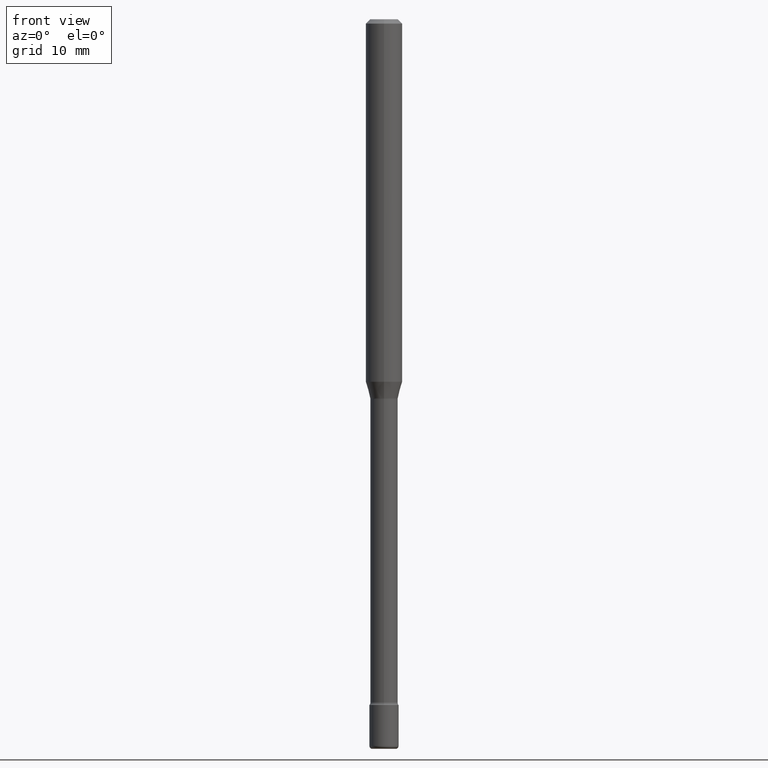
[diagram: clean part render]
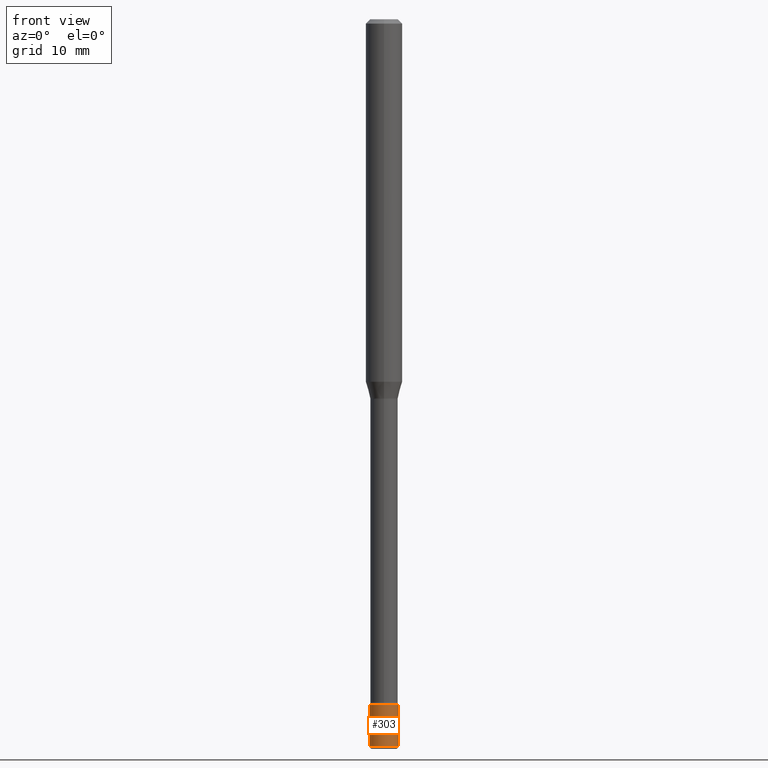
[diagram: same view with one face highlighted and labeled with its STEP entity id]
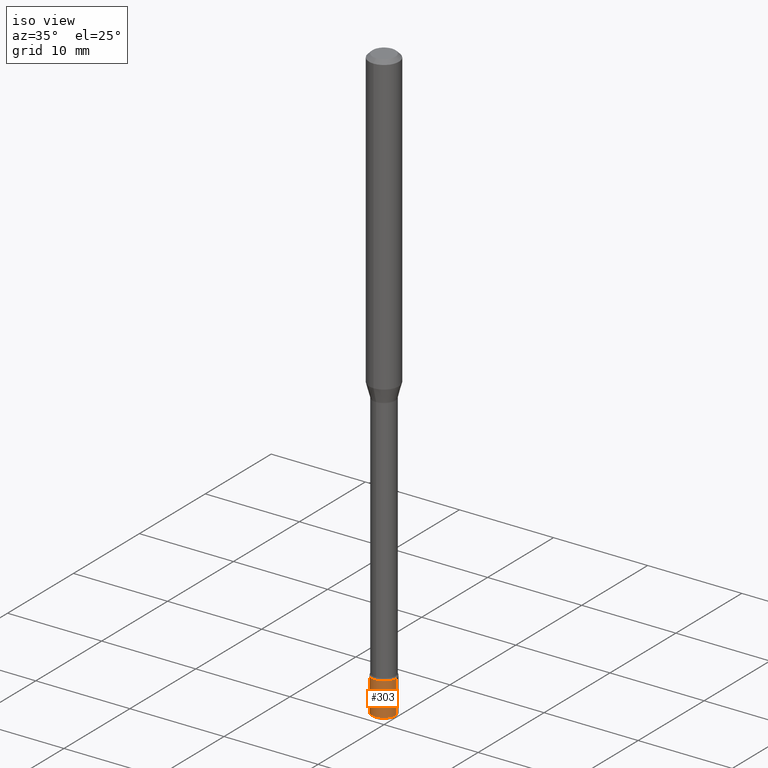
[diagram: same view with one face highlighted and labeled with its STEP entity id]
A machine part, front view. The second image highlights one B-rep face of the part: STEP entity #303.
A second angle (iso view) of the same face is appended — the face is thin or edge-on in the first view.
In plain terms, the highlighted cylindrical surface (edge-blend (fillet) strip) has radius 1.27 mm, axis along (-0, 0, 1).
Its self-contained STEP definition (entity closure, byte-faithful):
#5 = VERTEX_POINT ( 'NONE', #64 ) ;
#10 = ORIENTED_EDGE ( 'NONE', *, *, #278, .T. ) ;
#13 = DIRECTION ( 'NONE',  ( -2.445468806185136877E-29, 3.491481338843145188E-15, 1.000000000000000000 ) ) ;
#31 = LINE ( 'NONE', #165, #441 ) ;
#37 = AXIS2_PLACEMENT_3D ( 'NONE', #316, #447, #232 ) ;
#44 = AXIS2_PLACEMENT_3D ( 'NONE', #287, #169, #430 ) ;
#56 = ORIENTED_EDGE ( 'NONE', *, *, #442, .F. ) ;
#64 = CARTESIAN_POINT ( 'NONE',  ( 0.05000000000000004441, -9.042936667603745051E-15, -2.489999999999999769 ) ) ;
#82 = LINE ( 'NONE', #420, #319 ) ;
#85 = AXIS2_PLACEMENT_3D ( 'NONE', #403, #275, #325 ) ;
#114 = CARTESIAN_POINT ( 'NONE',  ( 0.05000000000000000278, -8.554129280165706697E-15, -2.350000000000000089 ) ) ;
#115 = EDGE_LOOP ( 'NONE', ( #56, #10, #150, #229 ) ) ;
#150 = ORIENTED_EDGE ( 'NONE', *, *, #164, .T. ) ;
#164 = EDGE_CURVE ( 'NONE', #5, #224, #31, .T. ) ;
#165 = CARTESIAN_POINT ( 'NONE',  ( 0.05000000000000000971, -3.491481338843134341E-16, 2.438088387897968597E-30 ) ) ;
#169 = DIRECTION ( 'NONE',  ( -2.445468806185136597E-29, 3.491481338843145583E-15, 1.000000000000000000 ) ) ;
#170 = DIRECTION ( 'NONE',  ( -2.445468806185136877E-29, 3.491481338843145188E-15, 1.000000000000000000 ) ) ;
#204 = CARTESIAN_POINT ( 'NONE',  ( -0.05000000000000004441, -8.338517165839381307E-15, -2.489999999999999769 ) ) ;
#213 = CARTESIAN_POINT ( 'NONE',  ( -0.05000000000000000278, -8.094113472120361341E-15, -2.350000000000000089 ) ) ;
#224 = VERTEX_POINT ( 'NONE', #114 ) ;
#229 = ORIENTED_EDGE ( 'NONE', *, *, #402, .F. ) ;
#232 = DIRECTION ( 'NONE',  ( 1.000000000000000000, -6.982962677686273021E-15, 0.000000000000000000 ) ) ;
#275 = DIRECTION ( 'NONE',  ( -2.445468806185136597E-29, 3.491481338843145583E-15, 1.000000000000000000 ) ) ;
#278 = EDGE_CURVE ( 'NONE', #462, #5, #499, .T. ) ;
#287 = CARTESIAN_POINT ( 'NONE',  ( 5.746851694535070554E-29, -8.204981146281391784E-15, -2.350000000000000089 ) ) ;
#303 = ADVANCED_FACE ( 'NONE', ( #550 ), #491, .T. ) ;
#316 = CARTESIAN_POINT ( 'NONE',  ( 6.089217327400989947E-29, -8.693788533719431716E-15, -2.489999999999999769 ) ) ;
#319 = VECTOR ( 'NONE', #170, 39.37007874015748143 ) ;
#325 = DIRECTION ( 'NONE',  ( 1.000000000000000000, -6.982962677686267499E-15, 4.876176775795936353E-29 ) ) ;
#365 = VERTEX_POINT ( 'NONE', #213 ) ;
#402 = EDGE_CURVE ( 'NONE', #365, #224, #526, .T. ) ;
#403 = CARTESIAN_POINT ( 'NONE',  ( 0.000000000000000000, 0.000000000000000000, 0.000000000000000000 ) ) ;
#420 = CARTESIAN_POINT ( 'NONE',  ( -0.05000000000000000971, 3.552713678800501620E-16, -2.459467545127453311E-30 ) ) ;
#430 = DIRECTION ( 'NONE',  ( 1.000000000000000000, -6.982962677686274599E-15, 0.000000000000000000 ) ) ;
#441 = VECTOR ( 'NONE', #13, 39.37007874015748143 ) ;
#442 = EDGE_CURVE ( 'NONE', #462, #365, #82, .T. ) ;
#447 = DIRECTION ( 'NONE',  ( -2.445468806185136597E-29, 3.491481338843145583E-15, 1.000000000000000000 ) ) ;
#462 = VERTEX_POINT ( 'NONE', #204 ) ;
#491 = CYLINDRICAL_SURFACE ( 'NONE', #85, 0.05000000000000000971 ) ;
#499 = CIRCLE ( 'NONE', #37, 0.05000000000000000971 ) ;
#526 = CIRCLE ( 'NONE', #44, 0.05000000000000000278 ) ;
#550 = FACE_OUTER_BOUND ( 'NONE', #115, .T. ) ;